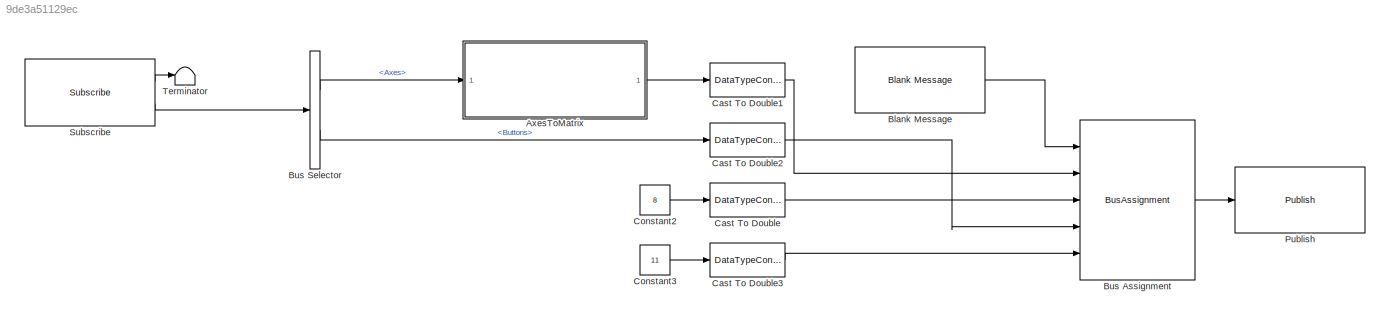
MODEL slx_9de3a51129ec
KIND model
CONFIG AbsTol = auto
CONFIG EnableMultiTasking = off
CONFIG FixedStep = 0.05
CONFIG MaxStep = auto
CONFIG MinStep = auto
CONFIG RelTol = 1e-3
CONFIG SampleTimeConstraint = Unconstrained
CONFIG Solver = FixedStepAuto
CONFIG SolverName = FixedStepAuto
CONFIG StartTime = 0.0
CONFIG StopTime = inf
WORKSPACE source: MAT-file member
WORKSPACE SL_ROS_VariableLengthArrays_MaxSizes: struct (value not decoded)
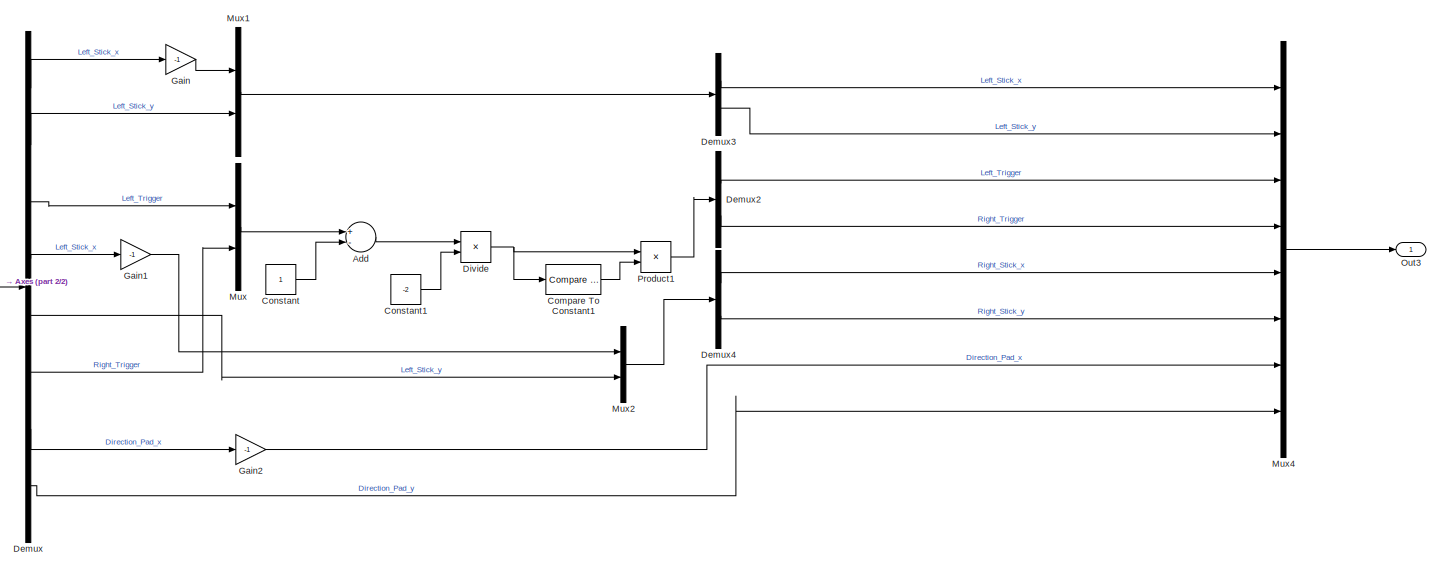
[diagram: AxesToMatrix - part 1/2, most of the canvas]
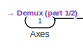
[diagram: AxesToMatrix - part 2/2, middle left region]
BLOCK [SubSystem] AxesToMatrix
  Ports = [1, 1]
  RequestExecContextInheritance = off
BLOCK [Sum] AxesToMatrix/Add
  InputSameDT = off
  Inputs = +-
  OutDataTypeStr = Inherit: Inherit via internal rule
  Ports = [2, 1]
  SaturateOnIntegerOverflow = off
BLOCK [Inport] AxesToMatrix/Axes
  IconDisplay = Port number
BLOCK [Reference] AxesToMatrix/Compare To Constant1  REF=simulink/Logic and Bit
Operations/Compare
To Constant
  Ports = [1, 1]
  SourceBlock = simulink/Logic and Bit\nOperations/Compare\nTo Constant
  SourceProductBaseCode = SL
  SourceProductName = Simulink
  SourceType = Compare To Constant
BLOCK [Constant] AxesToMatrix/Constant
BLOCK [Constant] AxesToMatrix/Constant1
  Value = -2
BLOCK [Demux] AxesToMatrix/Demux
  DisplayOption = bar
  Outputs = 8
  Ports = [1, 8]
BLOCK [Demux] AxesToMatrix/Demux2
  DisplayOption = bar
  Outputs = 2
  Ports = [1, 2]
BLOCK [Demux] AxesToMatrix/Demux3
  DisplayOption = bar
  Outputs = 2
  Ports = [1, 2]
BLOCK [Demux] AxesToMatrix/Demux4
  DisplayOption = bar
  Outputs = 2
  Ports = [1, 2]
BLOCK [Product] AxesToMatrix/Divide
  InputSameDT = off
  Inputs = */
  OutDataTypeStr = Inherit: Inherit via internal rule
  Ports = [2, 1]
  RndMeth = Floor
  SaturateOnIntegerOverflow = off
BLOCK [Gain] AxesToMatrix/Gain
  Gain = -1
  OutDataTypeStr = Inherit: Inherit via internal rule
  ParamDataTypeStr = Inherit: Inherit via internal rule
  SaturateOnIntegerOverflow = off
BLOCK [Gain] AxesToMatrix/Gain1
  Gain = -1
  OutDataTypeStr = Inherit: Inherit via internal rule
  ParamDataTypeStr = Inherit: Inherit via internal rule
  SaturateOnIntegerOverflow = off
BLOCK [Gain] AxesToMatrix/Gain2
  Gain = -1
  OutDataTypeStr = Inherit: Inherit via internal rule
  ParamDataTypeStr = Inherit: Inherit via internal rule
  SaturateOnIntegerOverflow = off
BLOCK [Mux] AxesToMatrix/Mux
  DisplayOption = bar
  Inputs = 2
  Ports = [2, 1]
BLOCK [Mux] AxesToMatrix/Mux1
  DisplayOption = bar
  Inputs = 2
  Ports = [2, 1]
BLOCK [Mux] AxesToMatrix/Mux2
  DisplayOption = bar
  Inputs = 2
  Ports = [2, 1]
BLOCK [Mux] AxesToMatrix/Mux4
  DisplayOption = bar
  Inputs = 8
  Ports = [8, 1]
BLOCK [Outport] AxesToMatrix/Out3
  IconDisplay = Port number
BLOCK [Product] AxesToMatrix/Product1
  InputSameDT = off
  OutDataTypeStr = single
  Ports = [2, 1]
  RndMeth = Floor
  SaturateOnIntegerOverflow = off
BLOCK [Reference] Blank Message  REF=robotlib/Blank Message
  Ports = [0, 1]
  SourceBlock = robotlib/Blank Message
  SourceProductBaseCode = RO
  SourceProductName = Robotics System Toolbox
  SourceType = ROS Blank Message
BLOCK [BusAssignment] Bus Assignment
  AssignedSignals = Axes,Axes_SL_Info.CurrentLength,Buttons,Buttons_SL_Info.CurrentLength
  Ports = [5, 1]
BLOCK [BusSelector] Bus Selector
  OutputAsBus = off
  OutputSignals = Axes,Buttons
  Ports = [1, 2]
BLOCK [DataTypeConversion] Cast To Double
  OutDataTypeStr = uint32
  RndMeth = Floor
  SaturateOnIntegerOverflow = off
BLOCK [DataTypeConversion] Cast To Double1
  OutDataTypeStr = single
  RndMeth = Floor
  SaturateOnIntegerOverflow = off
BLOCK [DataTypeConversion] Cast To Double2
  OutDataTypeStr = int32
  RndMeth = Floor
  SaturateOnIntegerOverflow = off
BLOCK [DataTypeConversion] Cast To Double3
  OutDataTypeStr = uint32
  RndMeth = Floor
  SaturateOnIntegerOverflow = off
BLOCK [Constant] Constant2
  Value = 8
BLOCK [Constant] Constant3
  Value = 11
BLOCK [Reference] Publish  REF=robotlib/Publish
  Ports = [1]
  SourceBlock = robotlib/Publish
  SourceProductBaseCode = RO
  SourceProductName = Robotics System Toolbox
  SourceType = ROS Publish
BLOCK [Reference] Subscribe  REF=robotlib/Subscribe
  Ports = [0, 2]
  SourceBlock = robotlib/Subscribe
  SourceProductBaseCode = RO
  SourceProductName = Robotics System Toolbox
  SourceType = ROS Subscribe
BLOCK [Terminator] Terminator
LINE AxesToMatrix/Add:1 -> AxesToMatrix/Divide:1
LINE AxesToMatrix/Axes:1 -> AxesToMatrix/Demux:1
LINE AxesToMatrix/Compare To Constant1:1 -> AxesToMatrix/Product1:2
LINE AxesToMatrix/Constant1:1 -> AxesToMatrix/Divide:2
LINE AxesToMatrix/Constant:1 -> AxesToMatrix/Add:2
LINE AxesToMatrix/Demux2:1 -> AxesToMatrix/Mux4:3
LINE AxesToMatrix/Demux2:2 -> AxesToMatrix/Mux4:4
LINE AxesToMatrix/Demux3:1 -> AxesToMatrix/Mux4:1
LINE AxesToMatrix/Demux3:2 -> AxesToMatrix/Mux4:2
LINE AxesToMatrix/Demux4:1 -> AxesToMatrix/Mux4:5
LINE AxesToMatrix/Demux4:2 -> AxesToMatrix/Mux4:6
LINE AxesToMatrix/Demux:1 -> AxesToMatrix/Gain:1
LINE AxesToMatrix/Demux:2 -> AxesToMatrix/Mux1:2
LINE AxesToMatrix/Demux:3 -> AxesToMatrix/Mux:1
LINE AxesToMatrix/Demux:4 -> AxesToMatrix/Gain1:1
LINE AxesToMatrix/Demux:5 -> AxesToMatrix/Mux2:2
LINE AxesToMatrix/Demux:6 -> AxesToMatrix/Mux:2
LINE AxesToMatrix/Demux:7 -> AxesToMatrix/Gain2:1
LINE AxesToMatrix/Demux:8 -> AxesToMatrix/Mux4:8
NET AxesToMatrix/Divide:1 -> AxesToMatrix/Compare To Constant1:1, AxesToMatrix/Product1:1
LINE AxesToMatrix/Gain1:1 -> AxesToMatrix/Mux2:1
LINE AxesToMatrix/Gain2:1 -> AxesToMatrix/Mux4:7
LINE AxesToMatrix/Gain:1 -> AxesToMatrix/Mux1:1
LINE AxesToMatrix/Mux1:1 -> AxesToMatrix/Demux3:1
LINE AxesToMatrix/Mux2:1 -> AxesToMatrix/Demux4:1
LINE AxesToMatrix/Mux4:1 -> AxesToMatrix/Out3:1
LINE AxesToMatrix/Mux:1 -> AxesToMatrix/Add:1
LINE AxesToMatrix/Product1:1 -> AxesToMatrix/Demux2:1
LINE AxesToMatrix:1 -> Cast To Double1:1
LINE Blank Message:1 -> Bus Assignment:1
LINE Bus Assignment:1 -> Publish:1
LINE Bus Selector:1 -> AxesToMatrix:1
LINE Bus Selector:2 -> Cast To Double2:1
LINE Cast To Double1:1 -> Bus Assignment:2
LINE Cast To Double2:1 -> Bus Assignment:4
LINE Cast To Double3:1 -> Bus Assignment:5
LINE Cast To Double:1 -> Bus Assignment:3
LINE Constant2:1 -> Cast To Double:1
LINE Constant3:1 -> Cast To Double3:1
LINE Subscribe:1 -> Terminator:1
LINE Subscribe:2 -> Bus Selector:1
note: NET lines group one-source signal fan-out (src -> all destinations, sorted); 1:1 wires keep LINE
